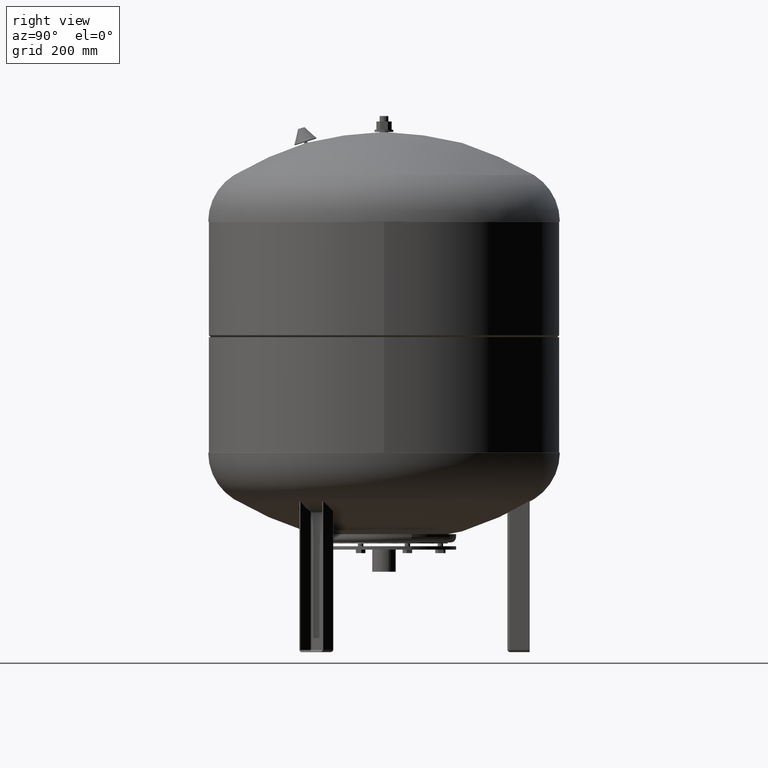
[diagram: clean part render]
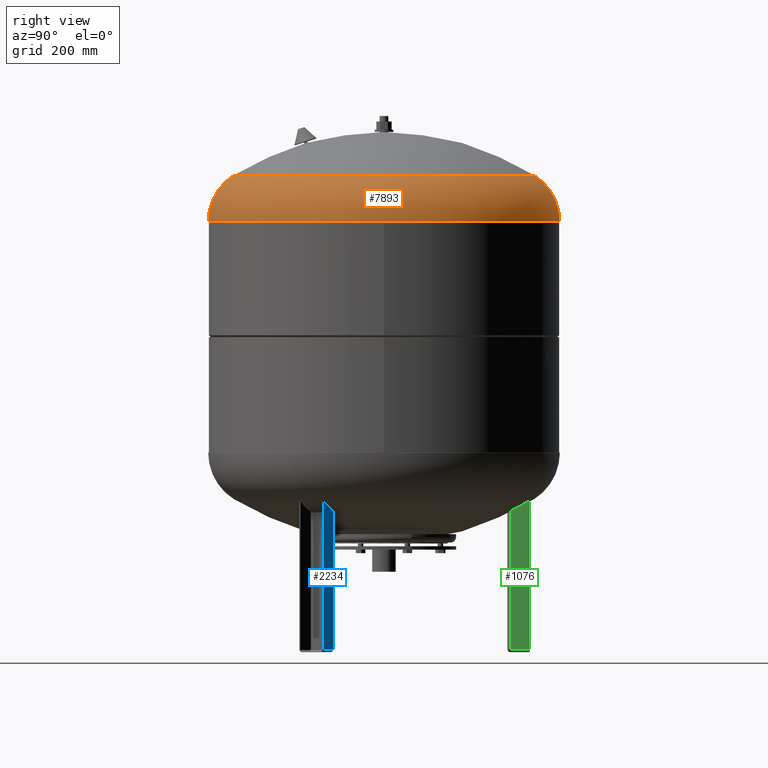
[diagram: same view with three faces highlighted in distinct colors, each labeled with its STEP entity id]
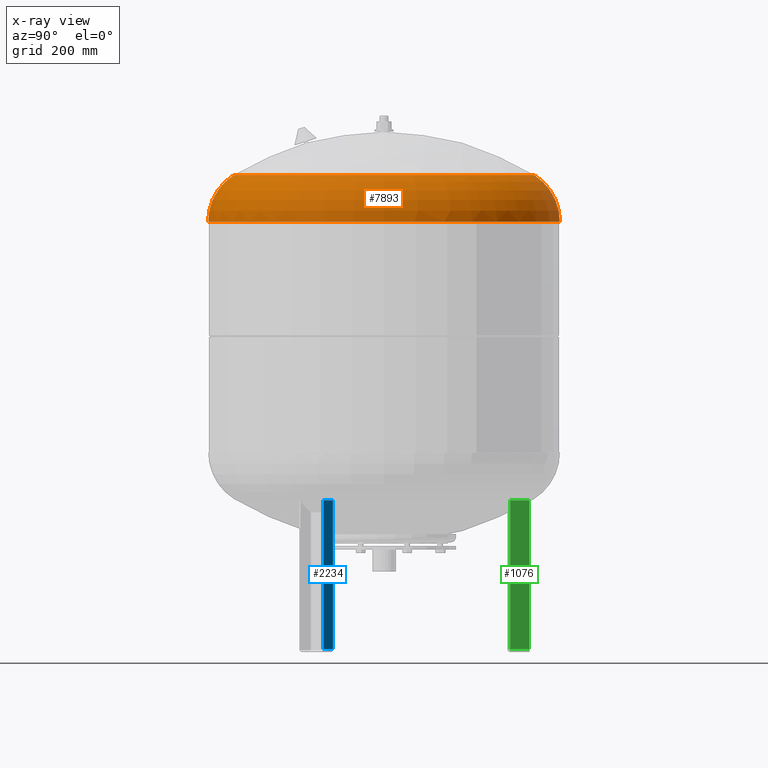
[diagram: x-ray of the same camera — body ghosted, the three highlighted faces saturated]
A machine part, right view with three faces highlighted in distinct colors.
The next image is the same camera in x-ray (body ghosted, the three faces saturated) — at least one of them is partly hidden behind the body in this view.
Their STEP definitions:

[orange] entity #7893 — the highlighted toroidal blend (fillet) surface has major radius 218 mm and minor (blend) radius 99 mm.
#7779=CARTESIAN_POINT('',(317.0,1.070453E-014,776.240550627371360));
#7780=VERTEX_POINT('',#7779);
#7787=CARTESIAN_POINT('',(-3.882002E-014,-317.0,776.240550627371140));
#7788=VERTEX_POINT('',#7787);
#7789=CARTESIAN_POINT('',(-1.556097E-014,4.952455E-014,776.240550627371360));
#7790=DIRECTION('',(0.0,0.0,-1.0));
#7791=DIRECTION('',(-1.0,0.0,0.0));
#7792=AXIS2_PLACEMENT_3D('',#7789,#7790,#7791);
#7793=CIRCLE('',#7792,317.000000000000060);
#7794=EDGE_CURVE('',#7780,#7788,#7793,.T.);
#7811=CARTESIAN_POINT('',(1.555323E-030,317.000000000000110,776.240550627371590));
#7812=VERTEX_POINT('',#7811);
#7813=CARTESIAN_POINT('',(8.065826E-015,270.639024390243830,860.086439681297630));
#7814=VERTEX_POINT('',#7813);
#7815=CARTESIAN_POINT('',(0.0,218.000000000000060,776.240550627371480));
#7816=DIRECTION('',(1.0,0.0,0.0));
#7817=DIRECTION('',(0.0,1.0,0.0));
#7818=AXIS2_PLACEMENT_3D('',#7815,#7816,#7817);
#7819=CIRCLE('',#7818,99.0);
#7820=EDGE_CURVE('',#7812,#7814,#7819,.T.);
#7830=CARTESIAN_POINT('',(-2.507680E-014,-270.639024390243830,860.086439681297410));
#7831=VERTEX_POINT('',#7830);
#7832=CARTESIAN_POINT('',(-2.669642E-014,-217.999999999999940,776.240550627371250));
#7833=DIRECTION('',(-1.0,0.0,0.0));
#7834=DIRECTION('',(0.0,-1.0,0.0));
#7835=AXIS2_PLACEMENT_3D('',#7832,#7833,#7834);
#7836=CIRCLE('',#7835,99.0);
#7837=EDGE_CURVE('',#7788,#7831,#7836,.T.);
#7865=CARTESIAN_POINT('',(-7.495146E-015,2.385415E-014,860.086439681297520));
#7866=DIRECTION('',(0.0,0.0,-1.0));
#7867=DIRECTION('',(-1.0,0.0,0.0));
#7868=AXIS2_PLACEMENT_3D('',#7865,#7866,#7867);
#7869=CIRCLE('',#7868,270.639024390243830);
#7870=EDGE_CURVE('',#7814,#7831,#7869,.T.);
#7875=CARTESIAN_POINT('',(0.0,4.952455E-014,776.240550627371360));
#7876=DIRECTION('',(-9.619823E-017,3.061617E-016,-1.0));
#7877=DIRECTION('',(0.0,1.0,0.0));
#7878=AXIS2_PLACEMENT_3D('',#7875,#7876,#7877);
#7879=TOROIDAL_SURFACE('',#7878,218.0,99.0);
#7880=ORIENTED_EDGE('',*,*,#7820,.T.);
#7881=ORIENTED_EDGE('',*,*,#7870,.T.);
#7882=ORIENTED_EDGE('',*,*,#7837,.F.);
#7883=ORIENTED_EDGE('',*,*,#7794,.F.);
#7884=CARTESIAN_POINT('',(-1.556097E-014,4.952455E-014,776.240550627371360));
#7885=DIRECTION('',(0.0,0.0,-1.0));
#7886=DIRECTION('',(-1.0,0.0,0.0));
#7887=AXIS2_PLACEMENT_3D('',#7884,#7885,#7886);
#7888=CIRCLE('',#7887,317.000000000000060);
#7889=EDGE_CURVE('',#7812,#7780,#7888,.T.);
#7890=ORIENTED_EDGE('',*,*,#7889,.F.);
#7891=EDGE_LOOP('',(#7880,#7881,#7882,#7883,#7890));
#7892=FACE_OUTER_BOUND('',#7891,.T.);
#7893=ADVANCED_FACE('',(#7892),#7879,.T.);

[blue] entity #2234 — the highlighted planar face has unit normal (0.5, 0.866, 0).
#1296=CARTESIAN_POINT('',(238.965643089630700,-109.099364905389110,274.0));
#1297=VERTEX_POINT('',#1296);
#1305=CARTESIAN_POINT('',(209.520779360959780,-92.099364905389081,274.0));
#1306=VERTEX_POINT('',#1305);
#1307=CARTESIAN_POINT('',(209.520779360959780,-92.099364905389081,274.0));
#1308=DIRECTION('',(0.866025403784438,-0.500000000000001,0.0));
#1309=VECTOR('',#1308,34.000000000000021);
#1310=LINE('',#1307,#1309);
#1311=EDGE_CURVE('',#1306,#1297,#1310,.T.);
#1741=CARTESIAN_POINT('',(238.965643089630700,-109.099364905389090,5.000000000000004));
#1742=VERTEX_POINT('',#1741);
#1769=CARTESIAN_POINT('',(238.965643089630700,-109.099364905389090,5.000000000000004));
#1770=DIRECTION('',(0.0,0.0,1.0));
#1771=VECTOR('',#1770,269.0);
#1772=LINE('',#1769,#1771);
#1773=EDGE_CURVE('',#1742,#1297,#1772,.T.);
#1969=CARTESIAN_POINT('',(209.520779360959780,-92.099364905389081,5.000000000000004));
#1970=VERTEX_POINT('',#1969);
#1978=CARTESIAN_POINT('',(209.520779360959780,-92.099364905389081,5.000000000000004));
#1979=DIRECTION('',(0.866025403784439,-0.500000000000000,0.0));
#1980=VECTOR('',#1979,34.000000000000014);
#1981=LINE('',#1978,#1980);
#1982=EDGE_CURVE('',#1970,#1742,#1981,.T.);
#2104=CARTESIAN_POINT('',(209.520779360959780,-92.099364905389081,5.000000000000004));
#2105=DIRECTION('',(0.0,0.0,1.0));
#2106=VECTOR('',#2105,269.0);
#2107=LINE('',#2104,#2106);
#2108=EDGE_CURVE('',#1970,#1306,#2107,.T.);
#2223=CARTESIAN_POINT('',(205.190652342037590,-89.599364905389081,4.592425E-015));
#2224=DIRECTION('',(0.500000000000000,0.866025403784438,1.836970E-016));
#2225=DIRECTION('',(-0.866025403784438,0.500000000000000,-3.059170E-032));
#2226=AXIS2_PLACEMENT_3D('',#2223,#2224,#2225);
#2227=PLANE('',#2226);
#2228=ORIENTED_EDGE('',*,*,#1773,.F.);
#2229=ORIENTED_EDGE('',*,*,#1982,.F.);
#2230=ORIENTED_EDGE('',*,*,#2108,.T.);
#2231=ORIENTED_EDGE('',*,*,#1311,.T.);
#2232=EDGE_LOOP('',(#2228,#2229,#2230,#2231));
#2233=FACE_OUTER_BOUND('',#2232,.T.);
#2234=ADVANCED_FACE('',(#2233),#2227,.T.);

[green] entity #1076 — the highlighted planar face has unit normal (1, 0, 0).
#284=CARTESIAN_POINT('',(25.000000000000007,227.500000000000000,274.0));
#285=VERTEX_POINT('',#284);
#293=CARTESIAN_POINT('',(25.0,261.500000000000000,274.0));
#294=VERTEX_POINT('',#293);
#295=CARTESIAN_POINT('',(25.0,261.500000000000000,274.0));
#296=DIRECTION('',(0.0,-1.0,0.0));
#297=VECTOR('',#296,34.0);
#298=LINE('',#295,#297);
#299=EDGE_CURVE('',#294,#285,#298,.T.);
#604=CARTESIAN_POINT('',(25.0,261.500000000000000,4.999999999999996));
#605=VERTEX_POINT('',#604);
#606=CARTESIAN_POINT('',(25.0,261.500000000000000,4.999999999999996));
#607=DIRECTION('',(0.0,0.0,1.0));
#608=VECTOR('',#607,269.0);
#609=LINE('',#606,#608);
#610=EDGE_CURVE('',#605,#294,#609,.T.);
#951=CARTESIAN_POINT('',(25.000000000000004,227.500000000000000,4.999999999999996));
#952=VERTEX_POINT('',#951);
#953=CARTESIAN_POINT('',(25.0,261.500000000000000,4.999999999999996));
#954=DIRECTION('',(0.0,-1.0,0.0));
#955=VECTOR('',#954,34.0);
#956=LINE('',#953,#955);
#957=EDGE_CURVE('',#605,#952,#956,.T.);
#1054=CARTESIAN_POINT('',(25.000000000000004,227.500000000000000,4.999999999999996));
#1055=DIRECTION('',(0.0,0.0,1.0));
#1056=VECTOR('',#1055,269.0);
#1057=LINE('',#1054,#1056);
#1058=EDGE_CURVE('',#952,#285,#1057,.T.);
#1065=CARTESIAN_POINT('',(24.999999999999996,262.500000000000000,-4.592425E-015));
#1066=DIRECTION('',(1.0,0.0,0.0));
#1067=DIRECTION('',(0.0,1.0,0.0));
#1068=AXIS2_PLACEMENT_3D('',#1065,#1066,#1067);
#1069=PLANE('',#1068);
#1070=ORIENTED_EDGE('',*,*,#610,.T.);
#1071=ORIENTED_EDGE('',*,*,#299,.T.);
#1072=ORIENTED_EDGE('',*,*,#1058,.F.);
#1073=ORIENTED_EDGE('',*,*,#957,.F.);
#1074=EDGE_LOOP('',(#1070,#1071,#1072,#1073));
#1075=FACE_OUTER_BOUND('',#1074,.T.);
#1076=ADVANCED_FACE('',(#1075),#1069,.T.);